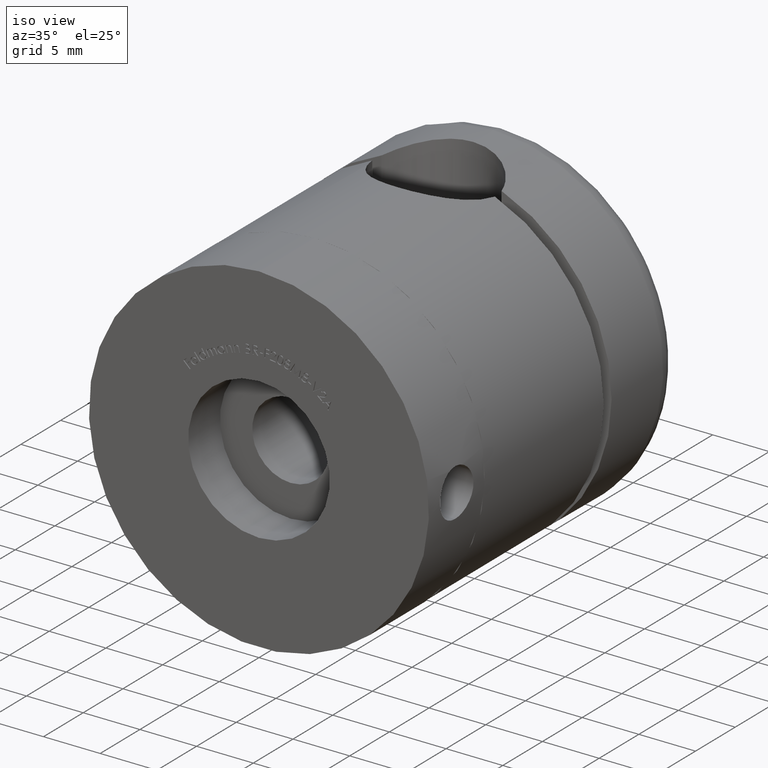
[diagram: clean part render]
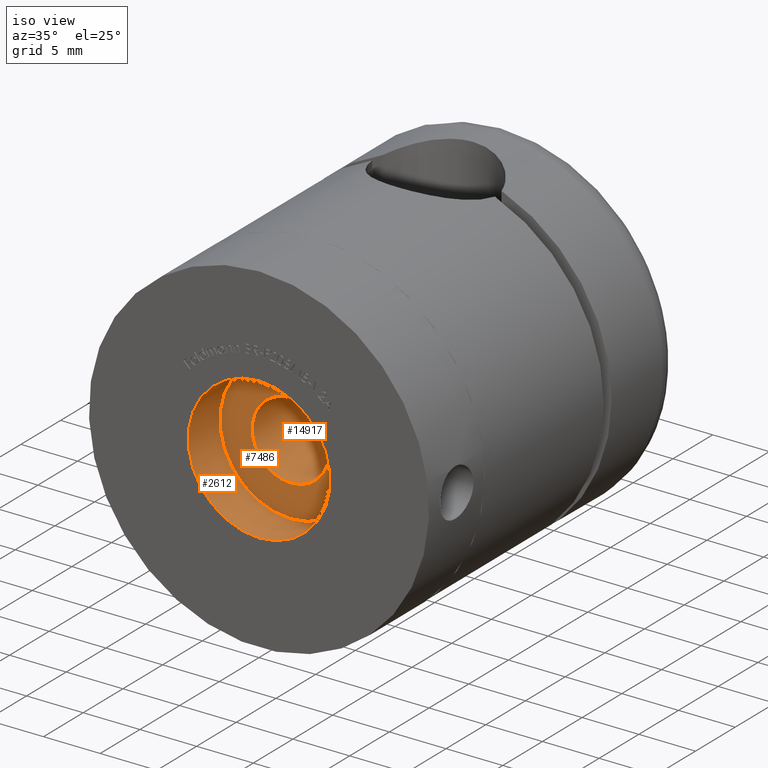
[diagram: same view with one multi-face feature highlighted, each face labeled with its STEP entity id]
A machine part, iso view. The highlighted faces form ONE feature: a stepped (counterbored) hole: 2 coaxial cylindrical walls of radii 3.4 -> 6.25 mm joined by 1 annular planar shoulder face(s). The faces share edges in the B-rep.
Their STEP definitions:
[1] entity #2612 (Cylinder):
#1065 = AXIS2_PLACEMENT_3D ( 'NONE', #2416, #14529, #11804 ) ;
#2416 = CARTESIAN_POINT ( 'NONE',  ( 0.0000000000000000000, 4.000000000000000000, 0.0000000000000000000 ) ) ;
#2425 = CYLINDRICAL_SURFACE ( 'NONE', #1065, 6.250000000000000000 ) ;
#2612 = ADVANCED_FACE ( 'NONE', ( #14030, #12785 ), #2425, .F. ) ;
#3087 = CIRCLE ( 'NONE', #14478, 6.250000000000000000 ) ;
#3590 = CARTESIAN_POINT ( 'NONE',  ( 0.0000000000000000000, 4.000000000000000000, -6.250000000000000000 ) ) ;
#4780 = DIRECTION ( 'NONE',  ( 0.0000000000000000000, 0.0000000000000000000, -1.000000000000000000 ) ) ;
#5071 = VERTEX_POINT ( 'NONE', #10252 ) ;
#6980 = CIRCLE ( 'NONE', #10396, 6.250000000000000000 ) ;
#10252 = CARTESIAN_POINT ( 'NONE',  ( 0.0000000000000000000, 0.0000000000000000000, -6.250000000000000000 ) ) ;
#10396 = AXIS2_PLACEMENT_3D ( 'NONE', #16854, #16616, #4780 ) ;
#10460 = EDGE_CURVE ( 'NONE', #5071, #5071, #3087, .T. ) ;
#11297 = VERTEX_POINT ( 'NONE', #3590 ) ;
#11804 = DIRECTION ( 'NONE',  ( 0.0000000000000000000, 0.0000000000000000000, -1.000000000000000000 ) ) ;
#12785 = FACE_OUTER_BOUND ( 'NONE', #15629, .T. ) ;
#12972 = CARTESIAN_POINT ( 'NONE',  ( 0.0000000000000000000, 0.0000000000000000000, 0.0000000000000000000 ) ) ;
#13675 = EDGE_CURVE ( 'NONE', #11297, #11297, #6980, .T. ) ;
#14030 = FACE_OUTER_BOUND ( 'NONE', #14759, .T. ) ;
#14478 = AXIS2_PLACEMENT_3D ( 'NONE', #12972, #16804, #15687 ) ;
#14529 = DIRECTION ( 'NONE',  ( -0.0000000000000000000, -1.000000000000000000, -0.0000000000000000000 ) ) ;
#14759 = EDGE_LOOP ( 'NONE', ( #17075 ) ) ;
#15629 = EDGE_LOOP ( 'NONE', ( #15836 ) ) ;
#15687 = DIRECTION ( 'NONE',  ( 0.0000000000000000000, 0.0000000000000000000, -1.000000000000000000 ) ) ;
#15836 = ORIENTED_EDGE ( 'NONE', *, *, #10460, .T. ) ;
#16616 = DIRECTION ( 'NONE',  ( 0.0000000000000000000, -1.000000000000000000, 0.0000000000000000000 ) ) ;
#16804 = DIRECTION ( 'NONE',  ( 0.0000000000000000000, -1.000000000000000000, 0.0000000000000000000 ) ) ;
#16854 = CARTESIAN_POINT ( 'NONE',  ( 0.0000000000000000000, 4.000000000000000000, 0.0000000000000000000 ) ) ;
#17075 = ORIENTED_EDGE ( 'NONE', *, *, #13675, .F. ) ;
[2] entity #14917 (Cylinder):
#382 = ORIENTED_EDGE ( 'NONE', *, *, #14995, .F. ) ;
#415 = CARTESIAN_POINT ( 'NONE',  ( 0.0000000000000000000, 4.000000000000000000, -0.0000000000000000000 ) ) ;
#694 = VERTEX_POINT ( 'NONE', #2265 ) ;
#747 = CYLINDRICAL_SURFACE ( 'NONE', #11267, 3.399999999999997700 ) ;
#2265 = CARTESIAN_POINT ( 'NONE',  ( 0.0000000000000000000, 13.15000000000000000, 3.399999999999997700 ) ) ;
#3293 = DIRECTION ( 'NONE',  ( -0.0000000000000000000, -1.000000000000000000, -0.0000000000000000000 ) ) ;
#4594 = EDGE_LOOP ( 'NONE', ( #14350 ) ) ;
#4733 = EDGE_LOOP ( 'NONE', ( #382 ) ) ;
#7150 = VERTEX_POINT ( 'NONE', #11536 ) ;
#7347 = DIRECTION ( 'NONE',  ( 0.0000000000000000000, 0.0000000000000000000, -1.000000000000000000 ) ) ;
#8624 = CARTESIAN_POINT ( 'NONE',  ( 0.0000000000000000000, 4.000000000000000000, 0.0000000000000000000 ) ) ;
#8716 = AXIS2_PLACEMENT_3D ( 'NONE', #8624, #3293, #11122 ) ;
#11122 = DIRECTION ( 'NONE',  ( 0.0000000000000000000, 0.0000000000000000000, -1.000000000000000000 ) ) ;
#11126 = FACE_OUTER_BOUND ( 'NONE', #4594, .T. ) ;
#11267 = AXIS2_PLACEMENT_3D ( 'NONE', #415, #12329, #7347 ) ;
#11536 = CARTESIAN_POINT ( 'NONE',  ( 0.0000000000000000000, 4.000000000000000000, -3.399999999999998600 ) ) ;
#11538 = DIRECTION ( 'NONE',  ( 0.0000000000000000000, 0.0000000000000000000, 1.000000000000000000 ) ) ;
#12329 = DIRECTION ( 'NONE',  ( -0.0000000000000000000, -1.000000000000000000, -0.0000000000000000000 ) ) ;
#12668 = EDGE_CURVE ( 'NONE', #7150, #7150, #15121, .T. ) ;
#13407 = FACE_OUTER_BOUND ( 'NONE', #4733, .T. ) ;
#14350 = ORIENTED_EDGE ( 'NONE', *, *, #12668, .T. ) ;
#14917 = ADVANCED_FACE ( 'NONE', ( #11126, #13407 ), #747, .F. ) ;
#14995 = EDGE_CURVE ( 'NONE', #694, #694, #17154, .T. ) ;
#15121 = CIRCLE ( 'NONE', #8716, 3.399999999999998600 ) ;
#15470 = DIRECTION ( 'NONE',  ( 0.0000000000000000000, -1.000000000000000000, 0.0000000000000000000 ) ) ;
#16601 = AXIS2_PLACEMENT_3D ( 'NONE', #16917, #15470, #11538 ) ;
#16917 = CARTESIAN_POINT ( 'NONE',  ( 0.0000000000000000000, 13.15000000000000000, 0.0000000000000000000 ) ) ;
#17154 = CIRCLE ( 'NONE', #16601, 3.399999999999997700 ) ;
[3] entity #7486 (Plane):
#232 = EDGE_LOOP ( 'NONE', ( #12367 ) ) ;
#3293 = DIRECTION ( 'NONE',  ( -0.0000000000000000000, -1.000000000000000000, -0.0000000000000000000 ) ) ;
#3590 = CARTESIAN_POINT ( 'NONE',  ( 0.0000000000000000000, 4.000000000000000000, -6.250000000000000000 ) ) ;
#3759 = EDGE_LOOP ( 'NONE', ( #15591 ) ) ;
#4780 = DIRECTION ( 'NONE',  ( 0.0000000000000000000, 0.0000000000000000000, -1.000000000000000000 ) ) ;
#6197 = PLANE ( 'NONE',  #9575 ) ;
#6484 = FACE_OUTER_BOUND ( 'NONE', #3759, .T. ) ;
#6980 = CIRCLE ( 'NONE', #10396, 6.250000000000000000 ) ;
#7150 = VERTEX_POINT ( 'NONE', #11536 ) ;
#7486 = ADVANCED_FACE ( 'NONE', ( #16248, #6484 ), #6197, .T. ) ;
#7789 = CARTESIAN_POINT ( 'NONE',  ( 0.0000000000000000000, 4.000000000000000000, 0.0000000000000000000 ) ) ;
#8624 = CARTESIAN_POINT ( 'NONE',  ( 0.0000000000000000000, 4.000000000000000000, 0.0000000000000000000 ) ) ;
#8716 = AXIS2_PLACEMENT_3D ( 'NONE', #8624, #3293, #11122 ) ;
#9011 = DIRECTION ( 'NONE',  ( 0.0000000000000000000, -1.000000000000000000, 0.0000000000000000000 ) ) ;
#9575 = AXIS2_PLACEMENT_3D ( 'NONE', #7789, #9011, #14281 ) ;
#10396 = AXIS2_PLACEMENT_3D ( 'NONE', #16854, #16616, #4780 ) ;
#11122 = DIRECTION ( 'NONE',  ( 0.0000000000000000000, 0.0000000000000000000, -1.000000000000000000 ) ) ;
#11297 = VERTEX_POINT ( 'NONE', #3590 ) ;
#11536 = CARTESIAN_POINT ( 'NONE',  ( 0.0000000000000000000, 4.000000000000000000, -3.399999999999998600 ) ) ;
#12367 = ORIENTED_EDGE ( 'NONE', *, *, #12668, .F. ) ;
#12668 = EDGE_CURVE ( 'NONE', #7150, #7150, #15121, .T. ) ;
#13675 = EDGE_CURVE ( 'NONE', #11297, #11297, #6980, .T. ) ;
#14281 = DIRECTION ( 'NONE',  ( 0.0000000000000000000, -0.0000000000000000000, -1.000000000000000000 ) ) ;
#15121 = CIRCLE ( 'NONE', #8716, 3.399999999999998600 ) ;
#15591 = ORIENTED_EDGE ( 'NONE', *, *, #13675, .T. ) ;
#16248 = FACE_BOUND ( 'NONE', #232, .T. ) ;
#16616 = DIRECTION ( 'NONE',  ( 0.0000000000000000000, -1.000000000000000000, 0.0000000000000000000 ) ) ;
#16854 = CARTESIAN_POINT ( 'NONE',  ( 0.0000000000000000000, 4.000000000000000000, 0.0000000000000000000 ) ) ;